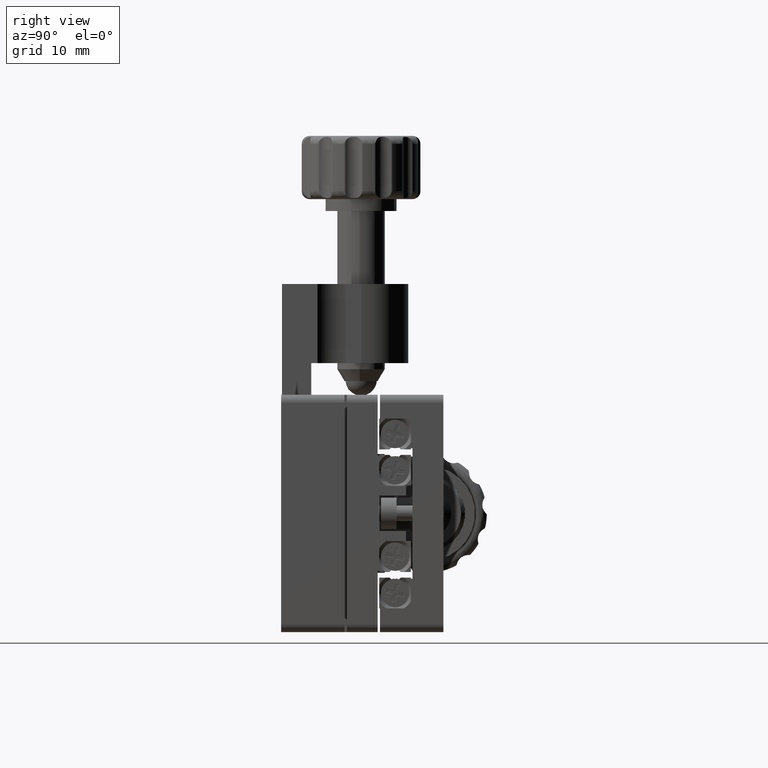
[diagram: clean part render]
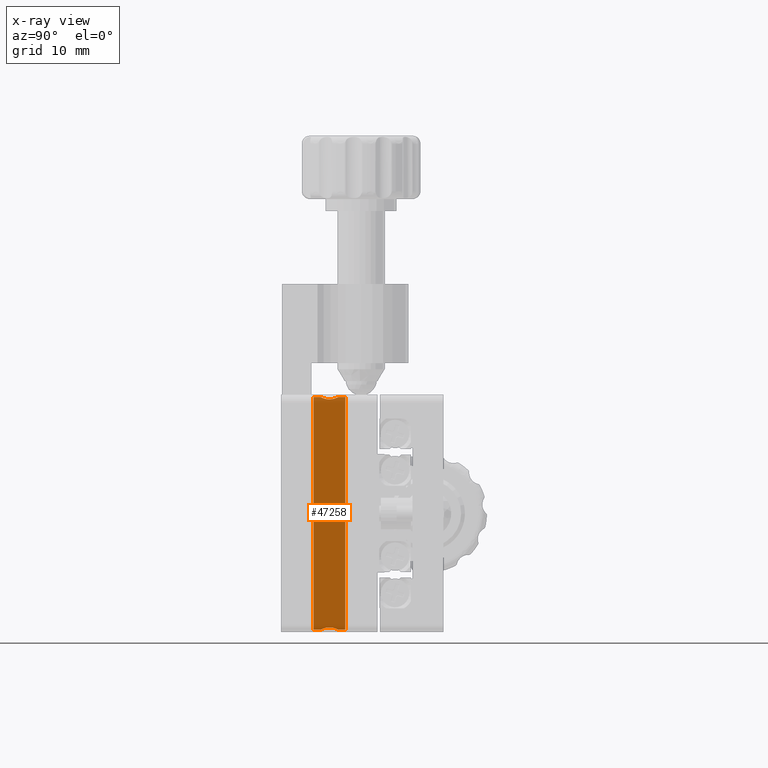
[diagram: x-ray — body ghosted, one internal face saturated and labeled with its STEP entity id]
A machine part, right view, then the same camera in x-ray: the body is ghosted and one INTERNAL B-rep face — a face not visible from any outside direction — is saturated and labeled: STEP entity #47258.
In plain terms, the highlighted planar face has unit normal (1, 0, 0).
Its self-contained STEP definition (entity closure, byte-faithful):
#123 = CARTESIAN_POINT ( 'NONE',  ( -11.99999999999998800, 5.708096901253203000, 14.43082863643657100 ) ) ;
#278 = CARTESIAN_POINT ( 'NONE',  ( -11.99999999999998600, 8.100000000000008500, 14.69999999999999800 ) ) ;
#471 = LINE ( 'NONE', #36578, #28998 ) ;
#550 = EDGE_CURVE ( 'NONE', #30286, #4270, #3357, .T. ) ;
#1382 = LINE ( 'NONE', #39940, #46624 ) ;
#1912 = ORIENTED_EDGE ( 'NONE', *, *, #550, .T. ) ;
#2223 = AXIS2_PLACEMENT_3D ( 'NONE', #9780, #25064, #40953 ) ;
#3103 = VERTEX_POINT ( 'NONE', #30063 ) ;
#3338 = EDGE_CURVE ( 'NONE', #38971, #44369, #7245, .T. ) ;
#3357 = B_SPLINE_CURVE_WITH_KNOTS ( 'NONE', 3,
 ( #8154, #28264, #47856, #12151, #31520, #4003 ),
 .UNSPECIFIED., .F., .F.,
 ( 4, 2, 4 ),
 ( 0.004340363386170458300, 0.004921637061197329700, 0.005502910736224202000 ),
 .UNSPECIFIED. ) ;
#4003 = CARTESIAN_POINT ( 'NONE',  ( -11.99999999999998600, 4.977502783967824300, -14.70000000000000100 ) ) ;
#4270 = VERTEX_POINT ( 'NONE', #8679 ) ;
#4443 = CARTESIAN_POINT ( 'NONE',  ( -11.99999999999998600, 4.977502783967824300, 14.69999999999999800 ) ) ;
#5059 = DIRECTION ( 'NONE',  ( 2.168404344971007900E-016, -1.000000000000000000, 0.0000000000000000000 ) ) ;
#5839 = CARTESIAN_POINT ( 'NONE',  ( -11.99999999999998600, 6.294620006577173600, 14.39999999999999900 ) ) ;
#6042 = ORIENTED_EDGE ( 'NONE', *, *, #47073, .T. ) ;
#7245 = LINE ( 'NONE', #278, #26473 ) ;
#8154 = CARTESIAN_POINT ( 'NONE',  ( -11.99999999999998600, 6.100000000000006800, -14.40000000000000200 ) ) ;
#8425 = CARTESIAN_POINT ( 'NONE',  ( -11.99999999999998600, 6.100000000000006800, 14.39999999999999900 ) ) ;
#8679 = CARTESIAN_POINT ( 'NONE',  ( -11.99999999999998600, 4.977502783967824300, -14.70000000000000100 ) ) ;
#8982 = CARTESIAN_POINT ( 'NONE',  ( -11.99999999999998600, 4.977502783967824300, 14.69999999999999800 ) ) ;
#9007 = B_SPLINE_CURVE_WITH_KNOTS ( 'NONE', 3,
 ( #45872, #5839, #29723, #13843, #45704, #45376 ),
 .UNSPECIFIED., .F., .F.,
 ( 4, 2, 4 ),
 ( 0.004036139387099943500, 0.004618627084813444600, 0.005201114782526945800 ),
 .UNSPECIFIED. ) ;
#9780 = CARTESIAN_POINT ( 'NONE',  ( -11.99999999999998600, 4.100000000000005000, 14.69999999999999800 ) ) ;
#10026 = FACE_OUTER_BOUND ( 'NONE', #50941, .T. ) ;
#10263 = ORIENTED_EDGE ( 'NONE', *, *, #32043, .T. ) ;
#11213 = CARTESIAN_POINT ( 'NONE',  ( -11.99999999999998600, 4.100000000000005000, 14.69999999999999800 ) ) ;
#11638 = CARTESIAN_POINT ( 'NONE',  ( -11.99999999999998600, 7.222497216032184800, -14.70000000000000100 ) ) ;
#12077 = ORIENTED_EDGE ( 'NONE', *, *, #28806, .T. ) ;
#12151 = CARTESIAN_POINT ( 'NONE',  ( -11.99999999999998800, 5.332491044738707900, -14.53786111715460900 ) ) ;
#13743 = VECTOR ( 'NONE', #37247, 1000.000000000000000 ) ;
#13843 = CARTESIAN_POINT ( 'NONE',  ( -11.99999999999998800, 6.867078378729125600, 14.53772410830698200 ) ) ;
#13964 = LINE ( 'NONE', #31953, #50573 ) ;
#16701 = CARTESIAN_POINT ( 'NONE',  ( -11.99999999999998600, 4.100000000000005000, 14.69999999999999800 ) ) ;
#18527 = B_SPLINE_CURVE_WITH_KNOTS ( 'NONE', 3,
 ( #4443, #32155, #43587, #123, #36110, #8425 ),
 .UNSPECIFIED., .F., .F.,
 ( 4, 2, 4 ),
 ( 0.002870577816919893300, 0.003453358602009918600, 0.004036139387099943500 ),
 .UNSPECIFIED. ) ;
#19180 = B_SPLINE_CURVE_WITH_KNOTS ( 'NONE', 3,
 ( #11638, #27227, #31174, #39318, #23613, #35335 ),
 .UNSPECIFIED., .F., .F.,
 ( 4, 2, 4 ),
 ( 0.003178400694982669100, 0.003759382040576563700, 0.004340363386170458300 ),
 .UNSPECIFIED. ) ;
#20924 = CARTESIAN_POINT ( 'NONE',  ( -11.99999999999998600, 6.100000000000006800, -14.40000000000000200 ) ) ;
#21004 = EDGE_CURVE ( 'NONE', #39536, #34956, #13964, .T. ) ;
#21195 = VECTOR ( 'NONE', #48006, 1000.000000000000000 ) ;
#21858 = CARTESIAN_POINT ( 'NONE',  ( -11.99999999999998600, 4.100000000000005000, -14.70000000000000100 ) ) ;
#23058 = EDGE_CURVE ( 'NONE', #49945, #39536, #36004, .T. ) ;
#23332 = EDGE_CURVE ( 'NONE', #27804, #3103, #9007, .T. ) ;
#23613 = CARTESIAN_POINT ( 'NONE',  ( -11.99999999999998800, 6.294620006577174500, -14.40000000000000000 ) ) ;
#23770 = ORIENTED_EDGE ( 'NONE', *, *, #23058, .F. ) ;
#24844 = ORIENTED_EDGE ( 'NONE', *, *, #50770, .F. ) ;
#25000 = CARTESIAN_POINT ( 'NONE',  ( -11.99999999999998600, 4.100000000000005000, -14.70000000000000100 ) ) ;
#25064 = DIRECTION ( 'NONE',  ( 1.000000000000000000, 2.168404344971007900E-016, 0.0000000000000000000 ) ) ;
#25417 = VERTEX_POINT ( 'NONE', #45896 ) ;
#26247 = ORIENTED_EDGE ( 'NONE', *, *, #3338, .T. ) ;
#26473 = VECTOR ( 'NONE', #39572, 1000.000000000000000 ) ;
#27227 = CARTESIAN_POINT ( 'NONE',  ( -11.99999999999998600, 7.047054426433163600, -14.61247375871207800 ) ) ;
#27804 = VERTEX_POINT ( 'NONE', #46625 ) ;
#28264 = CARTESIAN_POINT ( 'NONE',  ( -11.99999999999998600, 5.905282067462565000, -14.40000000000000200 ) ) ;
#28806 = EDGE_CURVE ( 'NONE', #25417, #30286, #19180, .T. ) ;
#28998 = VECTOR ( 'NONE', #5059, 1000.000000000000000 ) ;
#29662 = PLANE ( 'NONE',  #2223 ) ;
#29723 = CARTESIAN_POINT ( 'NONE',  ( -11.99999999999998900, 6.491995597639384400, 14.43086931973342500 ) ) ;
#30063 = CARTESIAN_POINT ( 'NONE',  ( -11.99999999999998600, 7.222497216032184800, 14.69999999999999800 ) ) ;
#30072 = ORIENTED_EDGE ( 'NONE', *, *, #21004, .F. ) ;
#30245 = EDGE_CURVE ( 'NONE', #49945, #27804, #18527, .T. ) ;
#30286 = VERTEX_POINT ( 'NONE', #20924 ) ;
#31039 = ORIENTED_EDGE ( 'NONE', *, *, #23332, .T. ) ;
#31174 = CARTESIAN_POINT ( 'NONE',  ( -11.99999999999998900, 6.867078378729125600, -14.53772410830699100 ) ) ;
#31520 = CARTESIAN_POINT ( 'NONE',  ( -11.99999999999998800, 5.152638477936797300, -14.61262696492973300 ) ) ;
#31953 = CARTESIAN_POINT ( 'NONE',  ( -11.99999999999998600, 4.100000000000005000, 14.69999999999999800 ) ) ;
#32043 = EDGE_CURVE ( 'NONE', #4270, #34956, #46595, .T. ) ;
#32155 = CARTESIAN_POINT ( 'NONE',  ( -11.99999999999998600, 5.152638477936797300, 14.61262696492972800 ) ) ;
#34627 = CARTESIAN_POINT ( 'NONE',  ( -11.99999999999998600, 8.100000000000008500, 14.69999999999999800 ) ) ;
#34956 = VERTEX_POINT ( 'NONE', #21858 ) ;
#35335 = CARTESIAN_POINT ( 'NONE',  ( -11.99999999999998600, 6.100000000000006800, -14.40000000000000200 ) ) ;
#35708 = ORIENTED_EDGE ( 'NONE', *, *, #30245, .T. ) ;
#36004 = LINE ( 'NONE', #16701, #21195 ) ;
#36110 = CARTESIAN_POINT ( 'NONE',  ( -11.99999999999998800, 5.905282067462565900, 14.40000000000000000 ) ) ;
#36578 = CARTESIAN_POINT ( 'NONE',  ( -11.99999999999998600, 4.100000000000005000, 14.69999999999999800 ) ) ;
#37247 = DIRECTION ( 'NONE',  ( 2.168404344971007900E-016, -1.000000000000000000, 0.0000000000000000000 ) ) ;
#38683 = CARTESIAN_POINT ( 'NONE',  ( -11.99999999999998600, 8.100000000000008500, -14.70000000000000100 ) ) ;
#38971 = VERTEX_POINT ( 'NONE', #34627 ) ;
#39318 = CARTESIAN_POINT ( 'NONE',  ( -11.99999999999998800, 6.491995597639379900, -14.43086931973342500 ) ) ;
#39536 = VERTEX_POINT ( 'NONE', #11213 ) ;
#39572 = DIRECTION ( 'NONE',  ( 0.0000000000000000000, 0.0000000000000000000, -1.000000000000000000 ) ) ;
#39940 = CARTESIAN_POINT ( 'NONE',  ( -11.99999999999998600, 4.100000000000005000, -14.70000000000000100 ) ) ;
#40953 = DIRECTION ( 'NONE',  ( -2.168404344971007900E-016, 1.000000000000000000, 0.0000000000000000000 ) ) ;
#43587 = CARTESIAN_POINT ( 'NONE',  ( -11.99999999999998900, 5.332491044738707900, 14.53786111715460700 ) ) ;
#44369 = VERTEX_POINT ( 'NONE', #38683 ) ;
#45376 = CARTESIAN_POINT ( 'NONE',  ( -11.99999999999998600, 7.222497216032184800, 14.69999999999999800 ) ) ;
#45704 = CARTESIAN_POINT ( 'NONE',  ( -11.99999999999998800, 7.047054426433166300, 14.61247375871207800 ) ) ;
#45872 = CARTESIAN_POINT ( 'NONE',  ( -11.99999999999998600, 6.100000000000006800, 14.39999999999999900 ) ) ;
#45896 = CARTESIAN_POINT ( 'NONE',  ( -11.99999999999998600, 7.222497216032184800, -14.70000000000000100 ) ) ;
#46595 = LINE ( 'NONE', #25000, #13743 ) ;
#46624 = VECTOR ( 'NONE', #51099, 1000.000000000000000 ) ;
#46625 = CARTESIAN_POINT ( 'NONE',  ( -11.99999999999998600, 6.100000000000006800, 14.39999999999999900 ) ) ;
#47073 = EDGE_CURVE ( 'NONE', #44369, #25417, #1382, .T. ) ;
#47258 = ADVANCED_FACE ( 'NONE', ( #10026 ), #29662, .F. ) ;
#47856 = CARTESIAN_POINT ( 'NONE',  ( -11.99999999999998900, 5.708096901253203900, -14.43082863643657500 ) ) ;
#48006 = DIRECTION ( 'NONE',  ( 2.168404344971007900E-016, -1.000000000000000000, 0.0000000000000000000 ) ) ;
#49945 = VERTEX_POINT ( 'NONE', #8982 ) ;
#50573 = VECTOR ( 'NONE', #51432, 1000.000000000000000 ) ;
#50770 = EDGE_CURVE ( 'NONE', #38971, #3103, #471, .T. ) ;
#50941 = EDGE_LOOP ( 'NONE', ( #23770, #35708, #31039, #24844, #26247, #6042, #12077, #1912, #10263, #30072 ) ) ;
#51099 = DIRECTION ( 'NONE',  ( 2.168404344971007900E-016, -1.000000000000000000, 0.0000000000000000000 ) ) ;
#51432 = DIRECTION ( 'NONE',  ( 0.0000000000000000000, 0.0000000000000000000, -1.000000000000000000 ) ) ;